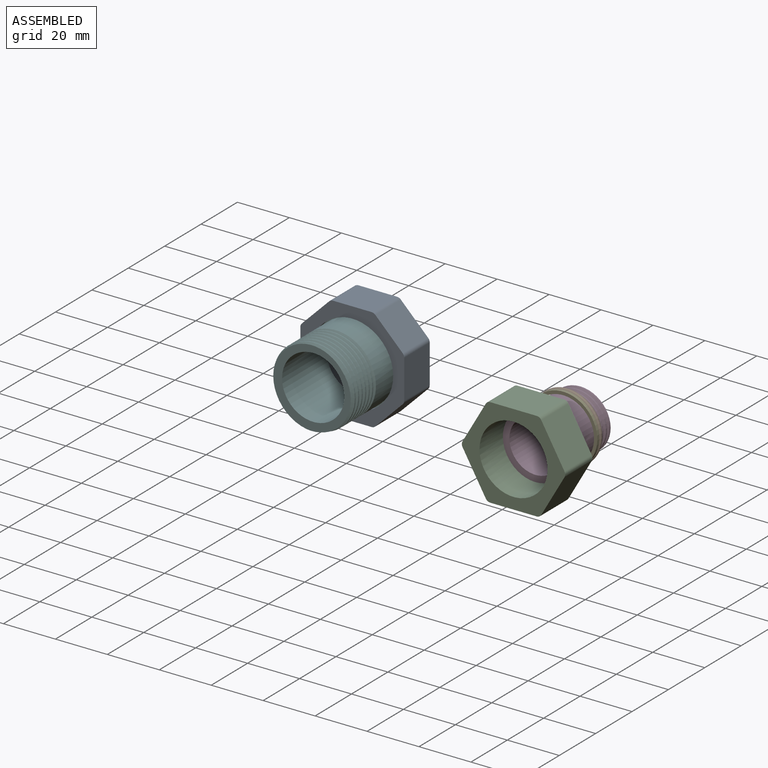
[diagram: assembled view]
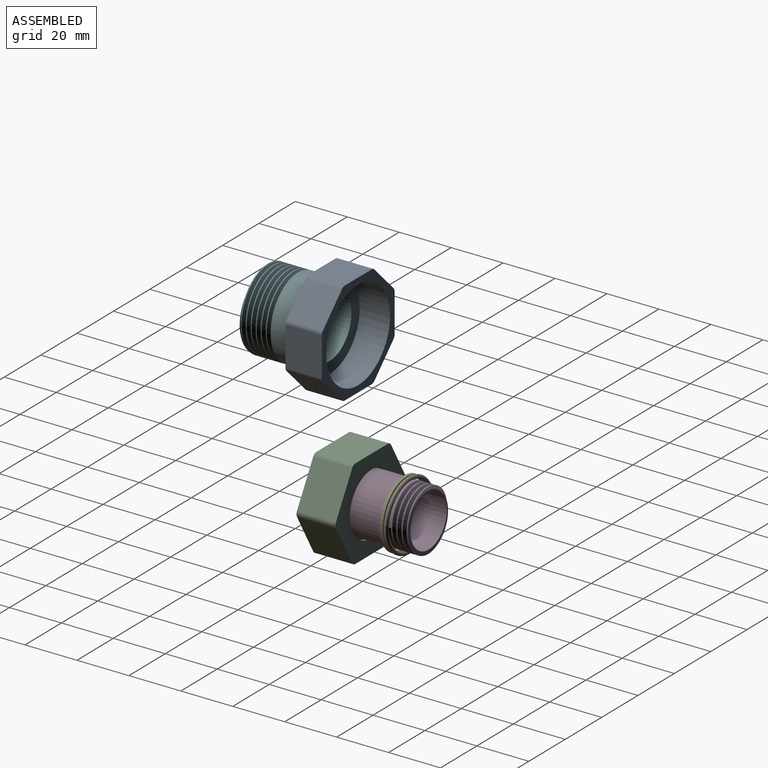
[diagram: assembled view, second angle]
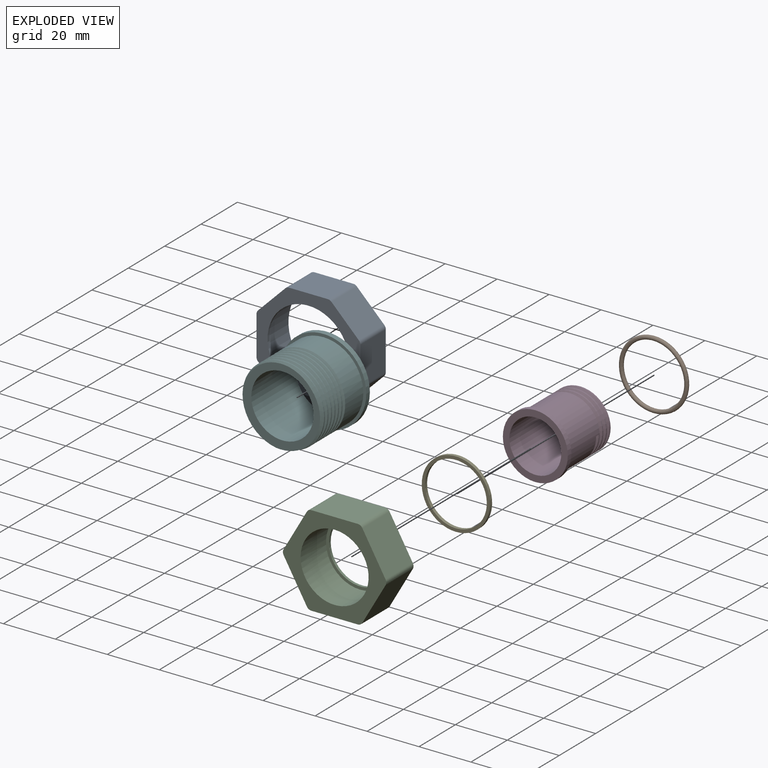
[diagram: exploded view]
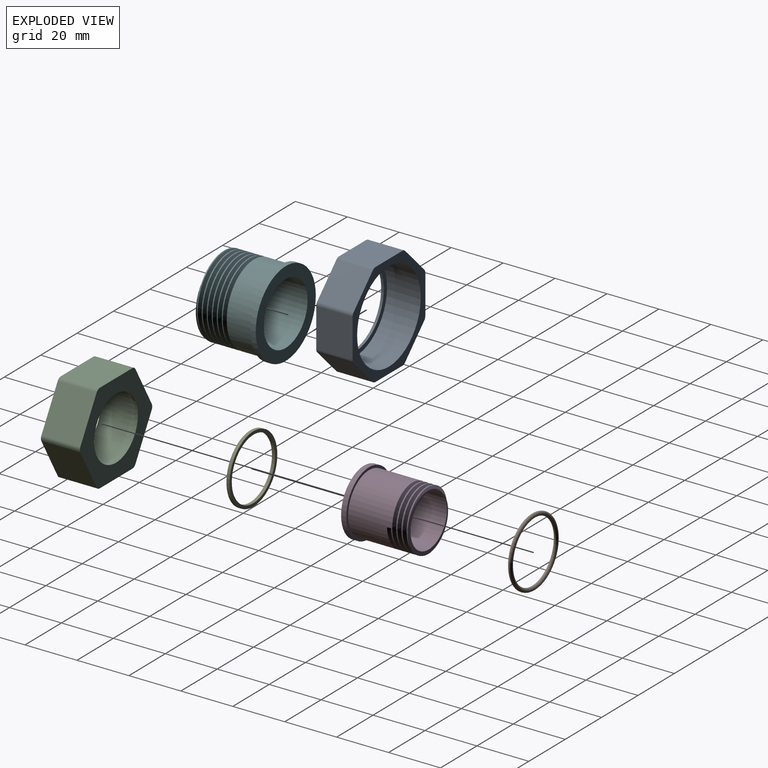
[diagram: exploded view, second angle]
ASSEMBLY  parts=6 mates=4
PART A: 21 faces, bbox 40x14x40 mm
  f0: cylinder r=17.5mm len=35mm, axis (0,-1,0), area 1429.4mm2, adj f9,f11
  f1: plane 14x10.54mm, normal (-0.71,0,0.71), area 208.8mm2, adj f9,f10,f13,f20
  f2: plane 14.91x14mm, normal (-1,0,0), area 208.8mm2, adj f9,f10,f13,f14
  f3: plane 14x10.54mm, normal (-0.71,0,-0.71), area 208.8mm2, adj f9,f10,f14,f15
  f4: plane 14.91x14mm, normal (0,0,-1), area 208.8mm2, adj f9,f10,f15,f16
  f5: plane 14x10.54mm, normal (0.71,0,-0.71), area 208.8mm2, adj f9,f10,f16,f17
  f6: plane 14.91x14mm, normal (1,0,0), area 208.8mm2, adj f9,f10,f17,f18
  f7: plane 14x10.54mm, normal (0.71,0,0.71), area 208.8mm2, adj f9,f10,f18,f19
  f8: plane 14.91x14mm, normal (0,0,1), area 208.8mm2, adj f9,f10,f19,f20
  f9: plane 40x40mm, normal (0,1,0), area 362.7mm2, adj f0,f1,f2,f3,f4,f5,f6,f7
  f10: plane 40x40mm, normal (0,-1,0), area 545.4mm2, adj f1,f2,f3,f4,f5,f6,f7,f8
  f11: plane 35x35mm, normal (0,1,0), area 182.7mm2, adj f0,f12
  f12: cylinder r=15.75mm len=31.5mm, axis (0,-1,0), area 99mm2, adj f10,f11
  f13: cylinder r=2mm len=14mm, axis (0,-1,0), area 22mm2, adj f1,f2,f9,f10
  f14: cylinder r=2mm len=14mm, axis (0,-1,0), area 22mm2, adj f2,f3,f9,f10
  f15: cylinder r=2mm len=14mm, axis (0,-1,0), area 22mm2, adj f3,f4,f9,f10
  f16: cylinder r=2mm len=14mm, axis (0,-1,0), area 22mm2, adj f4,f5,f9,f10
  f17: cylinder r=2mm len=14mm, axis (0,-1,0), area 22mm2, adj f5,f6,f9,f10
  f18: cylinder r=2mm len=14mm, axis (0,-1,0), area 22mm2, adj f6,f7,f9,f10
  f19: cylinder r=2mm len=14mm, axis (0,-1,0), area 22mm2, adj f7,f8,f9,f10
  f20: cylinder r=2mm len=14mm, axis (0,-1,0), area 22mm2, adj f1,f8,f9,f10
PART B: 1 faces, bbox 28.9x1.6x28.9 mm
  f0: torus R=12.59mm, axis (0,-1,0), area 385.3mm2
PART C: 17 faces, bbox 39.8x15x35 mm
  f0: cylinder r=13.1mm len=26.21mm, axis (0,1,0), area 1152.6mm2, adj f7,f9
  f1: plane 15.5x15mm, normal (0.87,0,0.5), area 268.5mm2, adj f7,f8,f11,f16
  f2: plane 15.5x15mm, normal (0.87,0,-0.5), area 268.5mm2, adj f7,f8,f11,f12
  f3: plane 17.9x15mm, normal (0,0,-1), area 268.5mm2, adj f7,f8,f12,f13
  f4: plane 15.5x15mm, normal (-0.87,0,-0.5), area 268.5mm2, adj f7,f8,f13,f14
  f5: plane 15.5x15mm, normal (-0.87,0,0.5), area 268.5mm2, adj f7,f8,f14,f15
  f6: plane 17.9x15mm, normal (0,0,1), area 268.5mm2, adj f7,f8,f15,f16
  f7: plane 39.8x35mm, normal (0,-1,0), area 520.2mm2, adj f0,f1,f2,f3,f4,f5,f6,f11
  f8: plane 39.8x35mm, normal (0,1,0), area 607.8mm2, adj f1,f2,f3,f4,f5,f6,f10,f11
  f9: plane 26.21x26.21mm, normal (0,-1,0), area 87.6mm2, adj f0,f10
  f10: cylinder r=11.99mm len=23.98mm, axis (0,1,0), area 75.3mm2, adj f8,f9
  f11: cylinder r=2mm len=15mm, axis (0,1,0), area 31.4mm2, adj f1,f2,f7,f8
  f12: cylinder r=2mm len=15mm, axis (0,1,0), area 31.4mm2, adj f2,f3,f7,f8
  f13: cylinder r=2mm len=15mm, axis (0,1,0), area 31.4mm2, adj f3,f4,f7,f8
  f14: cylinder r=2mm len=15mm, axis (0,1,0), area 31.4mm2, adj f4,f5,f7,f8
  f15: cylinder r=2mm len=15mm, axis (0,1,0), area 31.4mm2, adj f5,f6,f7,f8
  f16: cylinder r=2mm len=15mm, axis (0,1,0), area 31.4mm2, adj f1,f6,f7,f8
PART D: 12 faces, bbox 25.8x26.7x27.4 mm
  f0: cylinder r=10mm len=25mm, axis (0,-1,0), area 1570.8mm2, adj f3,f8
  f1: cylinder r=12.5mm len=25mm, axis (0,-1,0), area 157.1mm2, adj f2,f3
  f2: plane 25x25mm, normal (0,1,0), area 76mm2, adj f1,f7
  f3: plane 25x25mm, normal (0,-1,0), area 176.8mm2, adj f0,f1
  f4: cylinder r=11.49mm len=22.99mm, axis (0,-1,0), area 31.6mm2, adj f5,f8,f10,f11
  f5: cylinder r=11.49mm len=22.99mm, axis (0,-1,0), area 36.1mm2, adj f4,f6,f10,f11
  f6: cylinder r=11.49mm len=22.99mm, axis (0,-1,0), area 36.1mm2, adj f5,f7,f10,f11
  f7: cylinder r=11.49mm len=22.99mm, axis (0,-1,0), area 1164.4mm2, adj f2,f6,f9,f10,f11
  f8: plane 22.99x22.98mm, normal (0,1,0), area 67mm2, adj f0,f4,f10,f11
  f9: plane 1.5x1.3mm, normal (0,0,-1), area 1mm2, adj f7,f10,f11
  f10: bspline ~26.54x22.99mm, area 351mm2, adj f4,f5,f6,f7,f8,f9,f11
  f11: bspline ~26.54x22.99mm, area 390.1mm2, adj f4,f5,f6,f7,f8,f9,f10
PART E: 4 faces, bbox 26.3x1.2x26.3 mm
  f0: cylinder r=13.13mm len=26.26mm, axis (0,-1,0), area 100mm2, adj f1,f3
  f1: plane 26.26x26.26mm, normal (0,-1,0), area 95.4mm2, adj f0,f2
  f2: cylinder r=11.92mm len=23.83mm, axis (0,-1,0), area 90.8mm2, adj f1,f3
  f3: plane 26.26x26.26mm, normal (0,1,0), area 95.4mm2, adj f0,f2
PART F: 16 faces, bbox 33.9x26.3x36.4 mm
  f0: cylinder r=16.51mm len=33.03mm, axis (0,1,0), area 207.5mm2, adj f2,f3
  f1: cylinder r=12mm len=24.5mm, axis (0,1,0), area 1847.3mm2, adj f3,f12
  f2: plane 33.03x33.03mm, normal (0,-1,0), area 113.4mm2, adj f0,f11
  f3: plane 33.03x33.03mm, normal (0,1,0), area 404.2mm2, adj f0,f1
  f4: cylinder r=15.38mm len=15.17mm, axis (0,1,0), area 4.6mm2, adj f5,f12,f14
  f5: cylinder r=15.38mm len=30.76mm, axis (0,1,0), area 41.4mm2, adj f4,f6,f14,f15
  f6: cylinder r=15.38mm len=30.76mm, axis (0,1,0), area 41.5mm2, adj f5,f7,f14,f15
  f7: cylinder r=15.38mm len=30.76mm, axis (0,1,0), area 41.5mm2, adj f6,f8,f14,f15
  f8: cylinder r=15.38mm len=30.76mm, axis (0,1,0), area 41.4mm2, adj f7,f9,f14,f15
  f9: cylinder r=15.38mm len=30.76mm, axis (0,1,0), area 41.3mm2, adj f8,f10,f14,f15
  f10: cylinder r=15.38mm len=30.76mm, axis (0,1,0), area 41.4mm2, adj f9,f11,f14,f15
  f11: cylinder r=15.38mm len=30.76mm, axis (0,1,0), area 963mm2, adj f2,f10,f13,f15
  f12: plane 30.77x30.75mm, normal (0,-1,0), area 243.4mm2, adj f1,f4,f14,f15
  f13: plane 1.5x1.3mm, normal (0,0,-1), area 1mm2, adj f11,f14,f15
  f14: bspline ~35.52x30.76mm, area 888.1mm2, adj f4,f5,f6,f7,f8,f9,f10,f12
  f15: bspline ~35.52x30.76mm, area 945.3mm2, adj f5,f6,f7,f8,f9,f10,f11,f12
PLACE A t=(-54.16,18.37,56.22)mm
PLACE B t=(-14.46,11.1,21.41)mm
PLACE C t=(-14.46,10.32,21.41)mm
PLACE D t=(-14.46,10.32,21.41)mm
PLACE E t=(-14.46,11.71,21.41)mm
PLACE F t=(-54.16,17.37,56.22)mm
MATE revolute D.f0 <-> C.f0  axis (0,1,0) through (-14.46,12.32,21.41)mm
MATE fastened E.f0 <-> D.f0  axis (0,1,0) through (-14.46,26.82,21.41)mm
MATE fastened B.f0 <-> E.f0  axis (0,-1,0) through (-14.46,27.82,21.41)mm
MATE revolute F.f0 <-> A.f0  axis (0,-1,0) through (-54.16,-32.63,56.22)mm
